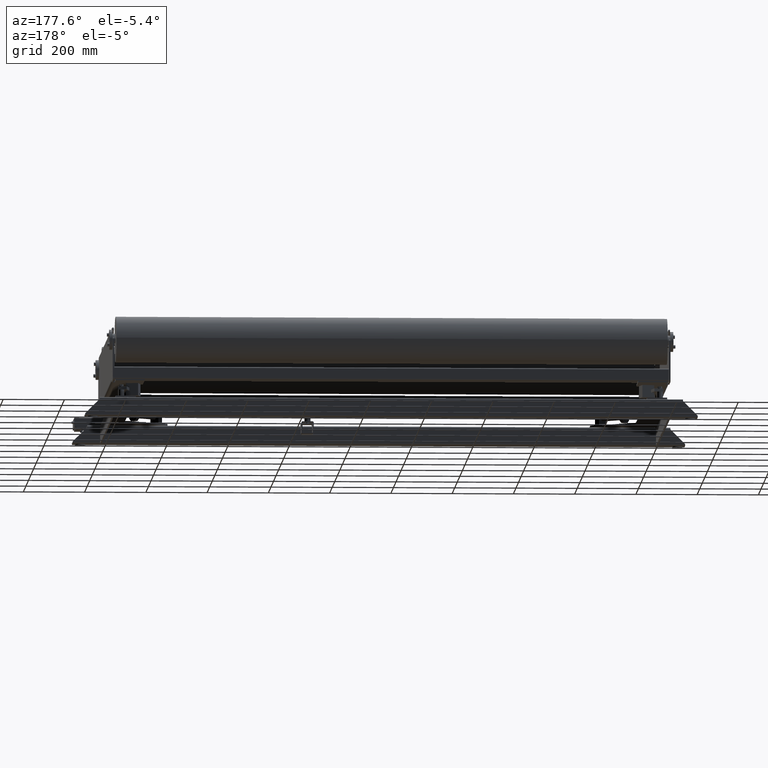
[diagram: clean part render]
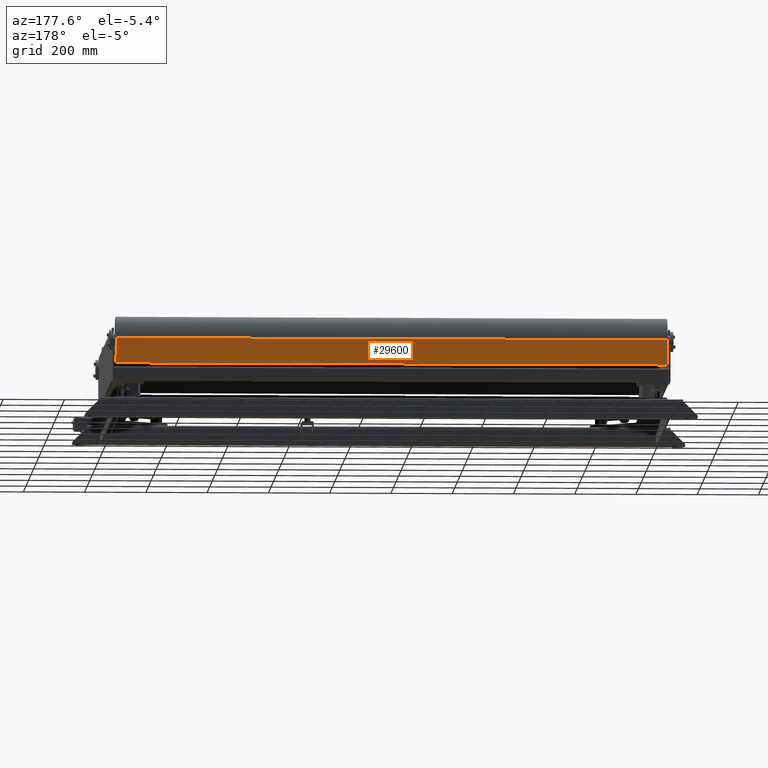
[diagram: same view with one face highlighted and labeled with its STEP entity id]
A machine part, auxiliary view. The second image highlights one B-rep face of the part: STEP entity #29600.
In plain terms, the highlighted cylindrical surface (edge-blend (fillet) strip) has radius 75 mm, axis along (1, -0, 0).
Its self-contained STEP definition (entity closure, byte-faithful):
#29559=CARTESIAN_POINT('',(600.0,-35.999999999999915,0.0));
#29560=DIRECTION('',(1.0,0.0,0.0));
#29561=DIRECTION('',(0.0,1.0,0.0));
#29562=AXIS2_PLACEMENT_3D('',#29559,#29560,#29561);
#29563=CYLINDRICAL_SURFACE('',#29562,74.999999999999915);
#29564=CARTESIAN_POINT('',(1500.0,39.000000000000085,0.0));
#29565=VERTEX_POINT('',#29564);
#29566=CARTESIAN_POINT('',(-300.000000000000110,38.999999999999901,0.0));
#29567=VERTEX_POINT('',#29566);
#29568=CARTESIAN_POINT('',(1500.0,39.000000000000085,0.0));
#29569=DIRECTION('',(-1.0,0.0,0.0));
#29570=VECTOR('',#29569,1800.0);
#29571=LINE('',#29568,#29570);
#29572=EDGE_CURVE('',#29565,#29567,#29571,.T.);
#29573=ORIENTED_EDGE('',*,*,#29572,.F.);
#29574=CARTESIAN_POINT('',(1500.0,-110.999999999999830,-9.184851E-015));
#29575=VERTEX_POINT('',#29574);
#29576=CARTESIAN_POINT('',(1500.0,-35.999999999999915,0.0));
#29577=DIRECTION('',(1.0,0.0,0.0));
#29578=DIRECTION('',(0.0,1.0,0.0));
#29579=AXIS2_PLACEMENT_3D('',#29576,#29577,#29578);
#29580=CIRCLE('',#29579,75.0);
#29581=EDGE_CURVE('',#29575,#29565,#29580,.T.);
#29582=ORIENTED_EDGE('',*,*,#29581,.F.);
#29583=CARTESIAN_POINT('',(-300.000000000000230,-110.999999999999830,-9.184851E-015));
#29584=VERTEX_POINT('',#29583);
#29585=CARTESIAN_POINT('',(1500.0,-110.999999999999830,-9.184851E-015));
#29586=DIRECTION('',(-1.0,0.0,0.0));
#29587=VECTOR('',#29586,1800.000000000000200);
#29588=LINE('',#29585,#29587);
#29589=EDGE_CURVE('',#29575,#29584,#29588,.T.);
#29590=ORIENTED_EDGE('',*,*,#29589,.T.);
#29591=CARTESIAN_POINT('',(-300.000000000000110,-35.999999999999915,0.0));
#29592=DIRECTION('',(1.0,0.0,0.0));
#29593=DIRECTION('',(0.0,1.0,0.0));
#29594=AXIS2_PLACEMENT_3D('',#29591,#29592,#29593);
#29595=CIRCLE('',#29594,74.999999999999815);
#29596=EDGE_CURVE('',#29584,#29567,#29595,.T.);
#29597=ORIENTED_EDGE('',*,*,#29596,.T.);
#29598=EDGE_LOOP('',(#29573,#29582,#29590,#29597));
#29599=FACE_OUTER_BOUND('',#29598,.T.);
#29600=ADVANCED_FACE('',(#29599),#29563,.T.);